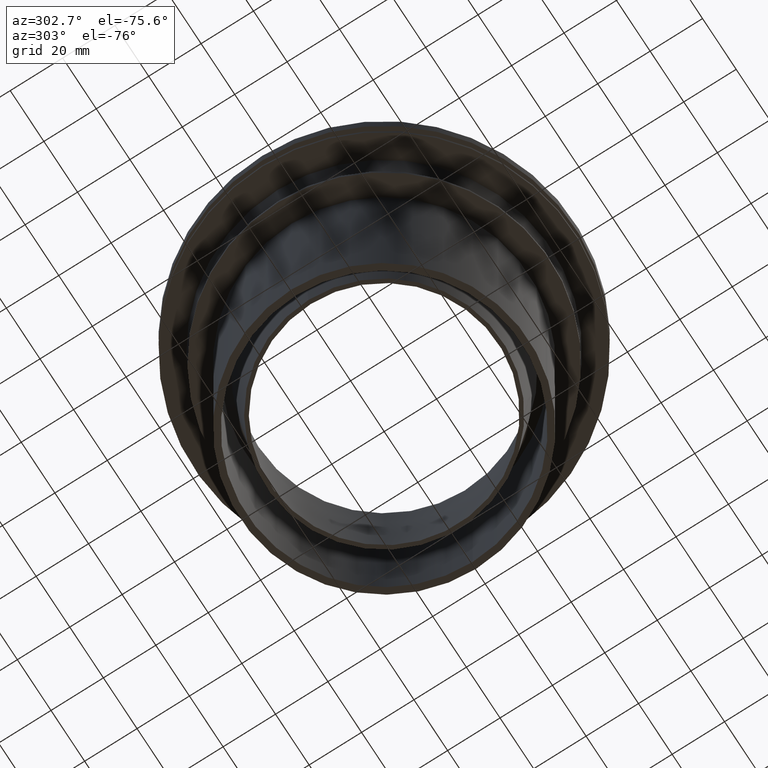
[diagram: clean part render]
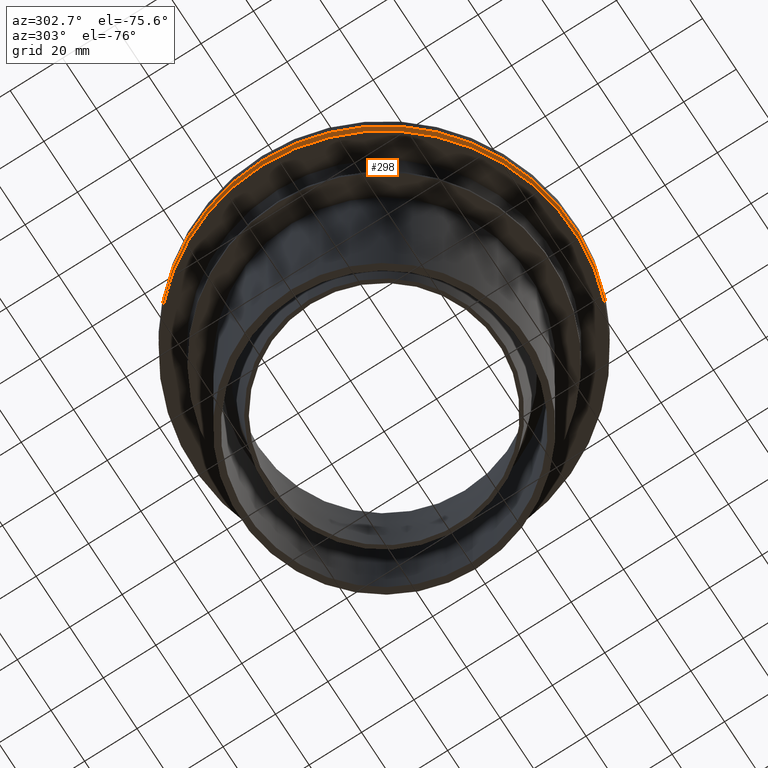
[diagram: same view with one face highlighted and labeled with its STEP entity id]
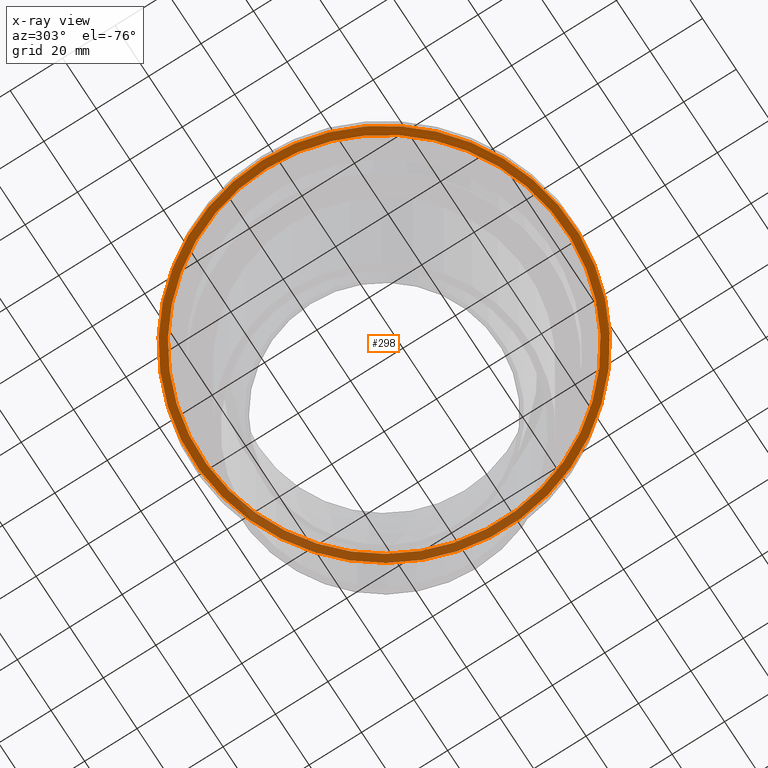
[diagram: x-ray of the same camera — body ghosted, the highlighted face saturated]
A machine part, auxiliary view. The second image highlights one B-rep face of the part: STEP entity #298.
The next image is the same camera in x-ray: the body ghosted, the highlighted face saturated — about 25% of this face is hidden behind the body in this view.
In plain terms, the highlighted planar face has unit normal (0, 0, -1).
Its self-contained STEP definition (entity closure, byte-faithful):
#64=ORIENTED_EDGE('',*,*,#109,.T.);
#65=ORIENTED_EDGE('',*,*,#108,.F.);
#108=EDGE_CURVE('',#134,#134,#160,.T.);
#109=EDGE_CURVE('',#135,#135,#161,.T.);
#134=VERTEX_POINT('',#533);
#135=VERTEX_POINT('',#536);
#160=CIRCLE('',#359,69.5);
#161=CIRCLE('',#361,72.5);
#194=EDGE_LOOP('',(#64));
#195=EDGE_LOOP('',(#65));
#246=FACE_BOUND('',#194,.T.);
#247=FACE_BOUND('',#195,.T.);
#284=PLANE('',#360);
#298=ADVANCED_FACE('',(#246,#247),#284,.T.);
#359=AXIS2_PLACEMENT_3D('',#532,#432,#433);
#360=AXIS2_PLACEMENT_3D('',#534,#434,#435);
#361=AXIS2_PLACEMENT_3D('',#535,#436,#437);
#432=DIRECTION('',(0.,0.,-1.));
#433=DIRECTION('',(-1.,0.,0.));
#434=DIRECTION('',(0.,0.,-1.));
#435=DIRECTION('',(-1.,0.,0.));
#436=DIRECTION('',(0.,0.,-1.));
#437=DIRECTION('',(-1.,0.,0.));
#532=CARTESIAN_POINT('',(0.,0.,-6.00000000000001));
#533=CARTESIAN_POINT('',(-69.5,0.,-6.00000000000001));
#534=CARTESIAN_POINT('',(-69.5,0.,-6.00000000000001));
#535=CARTESIAN_POINT('',(0.,0.,-6.00000000000001));
#536=CARTESIAN_POINT('',(-72.5,0.,-6.00000000000001));